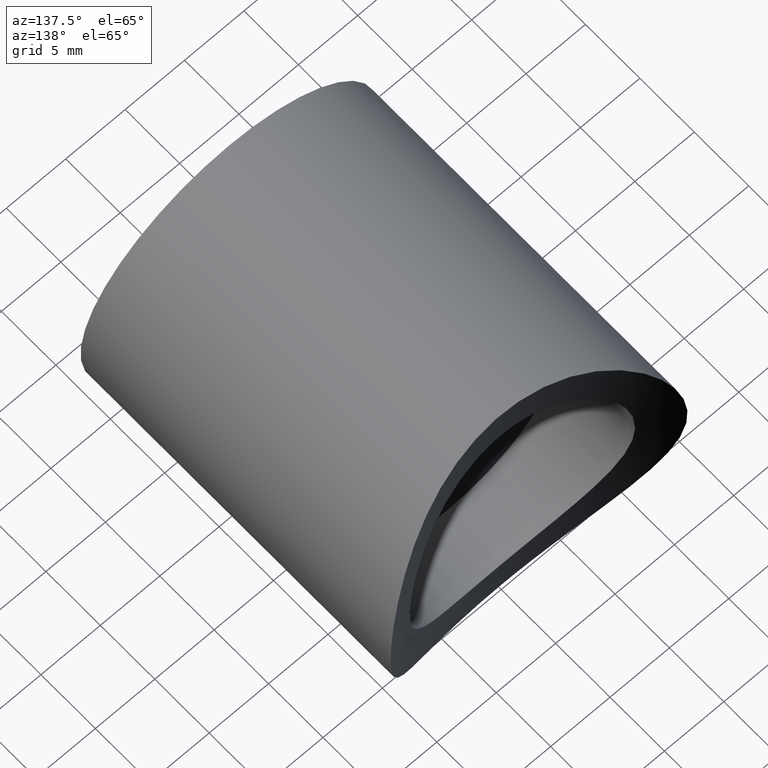
[diagram: clean part render]
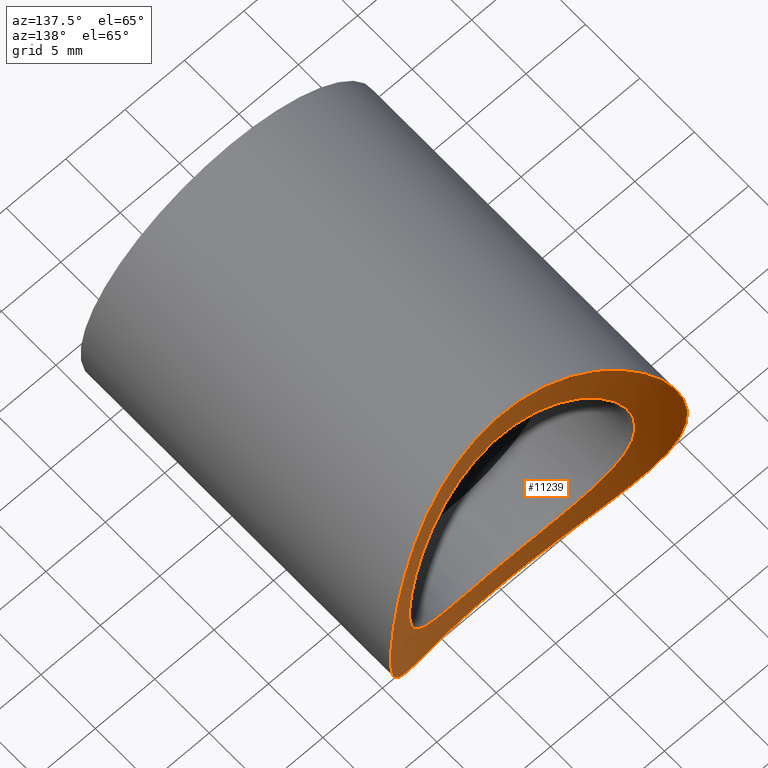
[diagram: same view with one face highlighted and labeled with its STEP entity id]
A machine part, auxiliary view. The second image highlights one B-rep face of the part: STEP entity #11239.
In plain terms, the highlighted cylindrical surface (partial cylindrical patch) has radius 24.15 mm, axis along (-0, -0, 1).
Its self-contained STEP definition (entity closure, byte-faithful):
#242 = CARTESIAN_POINT ( 'NONE',  ( 12.39939560149940334, 28.42610661434584429, 1.636956017459162416 ) ) ;
#252 = CARTESIAN_POINT ( 'NONE',  ( -3.316877259944503109, 25.21483071661616648, -12.08057711187187522 ) ) ;
#296 = CARTESIAN_POINT ( 'NONE',  ( 11.69463221032095035, 28.01968349082272169, 4.433206286189506962 ) ) ;
#311 = CARTESIAN_POINT ( 'NONE',  ( -5.421010862427522170E-16, 24.99999999999999645, -12.50000000000000178 ) ) ;
#326 = CARTESIAN_POINT ( 'NONE',  ( 0.000000000000000000, 49.14999999999999858, -12.50000000000000000 ) ) ;
#349 = CARTESIAN_POINT ( 'NONE',  ( -2.042669042519713596, 25.08308288046928425, 12.33891662597604189 ) ) ;
#396 = CARTESIAN_POINT ( 'NONE',  ( 0.8701867918572698812, 25.00139095811006129, 12.49731265922300594 ) ) ;
#444 = CARTESIAN_POINT ( 'NONE',  ( 12.16623829432023030, 28.28821014725352612, -2.898783021241122970 ) ) ;
#541 = FACE_BOUND ( 'NONE', #9761, .T. ) ;
#616 = CARTESIAN_POINT ( 'NONE',  ( 8.990454928467288553, 26.73562935201542601, -3.085357486730779364 ) ) ;
#668 = CARTESIAN_POINT ( 'NONE',  ( 8.237217831319831873, 26.44533245457878223, 4.772522679604954021 ) ) ;
#724 = CARTESIAN_POINT ( 'NONE',  ( 7.723775209362806038, 26.26772316830312803, 5.539673194081197849 ) ) ;
#772 = CARTESIAN_POINT ( 'NONE',  ( 0.6367274069740926912, 25.00637850114738114, 9.483817578424563521 ) ) ;
#819 = CARTESIAN_POINT ( 'NONE',  ( -8.645799211394617600, 26.60029495687120260, 3.949277084034160001 ) ) ;
#873 = VERTEX_POINT ( 'NONE', #3910 ) ;
#1027 = CARTESIAN_POINT ( 'NONE',  ( -2.477368257026581588, 25.11946122093323552, 9.192778334958580544 ) ) ;
#1335 = CARTESIAN_POINT ( 'NONE',  ( -10.16369364889730242, 27.24147719938138223, -7.287758421890151439 ) ) ;
#1427 = CARTESIAN_POINT ( 'NONE',  ( 12.07568711241505177, 28.23542578517956514, 3.255345404598888326 ) ) ;
#1480 = CARTESIAN_POINT ( 'NONE',  ( 2.880084786186520418, 25.16890301952331654, -12.17068015586779772 ) ) ;
#1530 = CARTESIAN_POINT ( 'NONE',  ( -4.048937038016213741, 25.32909628045069894, 11.85496764630669020 ) ) ;
#1579 = CARTESIAN_POINT ( 'NONE',  ( 5.594287980704880425, 25.64427812082080393, -11.20816533570559237 ) ) ;
#1632 = CARTESIAN_POINT ( 'NONE',  ( 9.923142205795819848, 27.13111103054635720, 7.612074174934306825 ) ) ;
#1748 = CARTESIAN_POINT ( 'NONE',  ( 8.527852376057262873, 26.55434819827350168, -4.231666778120477090 ) ) ;
#1800 = CARTESIAN_POINT ( 'NONE',  ( 2.476898393227373152, 25.12545592991584442, -9.176787205671457670 ) ) ;
#1850 = CARTESIAN_POINT ( 'NONE',  ( 9.011774073292215803, 26.74291890696499863, 3.071009793062427828 ) ) ;
#2057 = CARTESIAN_POINT ( 'NONE',  ( -8.226763975962532172, 26.44389147346072733, -4.760989118344688187 ) ) ;
#2107 = CARTESIAN_POINT ( 'NONE',  ( -7.153422303367721113, 26.07924161334418756, 6.282005769728957745 ) ) ;
#2157 = CARTESIAN_POINT ( 'NONE',  ( -3.072267678048737682, 25.18916197169116700, 9.011029675267774763 ) ) ;
#2211 = CARTESIAN_POINT ( 'NONE',  ( -4.766860932096798287, 25.47348250131881642, 8.223378779994927612 ) ) ;
#2396 = CARTESIAN_POINT ( 'NONE',  ( -12.40093975770249912, 28.42703164710895791, -1.625193573246791034 ) ) ;
#2518 = CARTESIAN_POINT ( 'NONE',  ( -5.595272729540674561, 25.65417096119978524, -11.18531521167290066 ) ) ;
#2612 = CARTESIAN_POINT ( 'NONE',  ( 8.560607551957422956, 26.56613982061724855, -9.117340885081240742 ) ) ;
#2662 = CARTESIAN_POINT ( 'NONE',  ( 5.616393516081356729, 25.64972558784733536, 11.19673421751229903 ) ) ;
#2717 = CARTESIAN_POINT ( 'NONE',  ( -6.290458467577763280, 25.82310979107226956, 10.83203505537226086 ) ) ;
#2766 = CARTESIAN_POINT ( 'NONE',  ( 12.17629244726874660, 28.29408420261459156, 2.856247619983873332 ) ) ;
#2820 = CARTESIAN_POINT ( 'NONE',  ( 12.48103956478300702, 28.47517425164690863, 0.8051631312347458103 ) ) ;
#2942 = CARTESIAN_POINT ( 'NONE',  ( 8.529957691302314515, 26.55510728411172394, 4.228829020159077245 ) ) ;
#2949 = AXIS2_PLACEMENT_3D ( 'NONE', #326, #3772, #8574 ) ;
#2992 = CARTESIAN_POINT ( 'NONE',  ( 9.376693620057872991, 26.89456204277399820, 1.557247264431475431 ) ) ;
#3081 = CARTESIAN_POINT ( 'NONE',  ( -12.50113647660908178, 28.48737459274473949, -0.3784457863119011223 ) ) ;
#3097 = CARTESIAN_POINT ( 'NONE',  ( 9.500381635804105329, 26.94717925683632842, 0.3015378183090482445 ) ) ;
#3147 = CARTESIAN_POINT ( 'NONE',  ( -9.434962940845295520, 26.91889607188140943, 1.273160634128868818 ) ) ;
#3242 = CARTESIAN_POINT ( 'NONE',  ( -3.934444486296401422, 25.32087562434656292, 8.652572895259922348 ) ) ;
#3296 = CARTESIAN_POINT ( 'NONE',  ( -9.187328606542145337, 26.81541917489055393, 2.496488888585715493 ) ) ;
#3343 = CARTESIAN_POINT ( 'NONE',  ( -8.510542519066497391, 26.54872143713437183, 4.232847530208180054 ) ) ;
#3702 = CARTESIAN_POINT ( 'NONE',  ( -0.8415633137906161076, 25.01104361446218149, -12.47870299761530433 ) ) ;
#3772 = DIRECTION ( 'NONE',  ( -0.000000000000000000, -0.000000000000000000, 1.000000000000000000 ) ) ;
#3795 = CARTESIAN_POINT ( 'NONE',  ( 9.905737200678290222, 27.12327709735981074, -7.634650847773372107 ) ) ;
#3845 = CARTESIAN_POINT ( 'NONE',  ( 3.322960808794963583, 25.22639354888726615, 12.05726743121238265 ) ) ;
#3896 = CARTESIAN_POINT ( 'NONE',  ( -8.264077568507033789, 26.44978608018516653, 9.412695405477595756 ) ) ;
#3910 = CARTESIAN_POINT ( 'NONE',  ( 0.000000000000000000, 24.99999999999999289, -9.500000000000000000 ) ) ;
#3922 = CARTESIAN_POINT ( 'NONE',  ( -11.36069409278679743, 27.83828525848094415, 5.229597903835152550 ) ) ;
#3961 = CARTESIAN_POINT ( 'NONE',  ( -12.39229586063315125, 28.42185618982530215, 1.689128689021135443 ) ) ;
#4000 = CARTESIAN_POINT ( 'NONE',  ( 9.412192866964701921, 26.90790369320749775, 8.235475087461983534 ) ) ;
#4071 = CARTESIAN_POINT ( 'NONE',  ( 4.777492450567407900, 25.47141337804063355, -8.234587001808481688 ) ) ;
#4119 = CARTESIAN_POINT ( 'NONE',  ( 1.573465314519182368, 25.04932036444492738, 9.374090728484139490 ) ) ;
#4176 = CARTESIAN_POINT ( 'NONE',  ( 9.251696904950398093, 26.84230876325579018, -2.180429874088624320 ) ) ;
#4281 = CARTESIAN_POINT ( 'NONE',  ( 3.949770568916393110, 25.32343629741845703, 8.645516123807398756 ) ) ;
#4330 = CARTESIAN_POINT ( 'NONE',  ( -4.218238365120579481, 25.36961082937598988, 8.517827586905386994 ) ) ;
#4384 = CARTESIAN_POINT ( 'NONE',  ( -6.277639297956271847, 25.82888153849502544, -7.137010952105956818 ) ) ;
#4537 = CARTESIAN_POINT ( 'NONE',  ( -8.996200247582851972, 26.73793805095572296, -3.068502061978073403 ) ) ;
#4599 = FACE_OUTER_BOUND ( 'NONE', #13403, .T. ) ;
#4624 = CARTESIAN_POINT ( 'NONE',  ( -10.58722758480828752, 27.44295697200132977, 6.657615752389725472 ) ) ;
#4854 = CARTESIAN_POINT ( 'NONE',  ( -1.676951933329635214, 25.05466276626705024, -12.39411511674444810 ) ) ;
#5015 = CARTESIAN_POINT ( 'NONE',  ( 12.06284593198464528, 28.22800179751478566, -3.302785208884865931 ) ) ;
#5040 = CARTESIAN_POINT ( 'NONE',  ( -11.18556598586050654, 27.74549956250869442, 5.594425883101207475 ) ) ;
#5061 = CARTESIAN_POINT ( 'NONE',  ( 2.916893301379968051, 25.17329496480514450, 12.16203323285879279 ) ) ;
#5112 = CARTESIAN_POINT ( 'NONE',  ( 7.317373504727924249, 26.13256476786166260, -10.14252889460935414 ) ) ;
#5148 = CARTESIAN_POINT ( 'NONE',  ( -12.33897836552499427, 28.38991737696543183, -2.042544866178403140 ) ) ;
#5169 = CARTESIAN_POINT ( 'NONE',  ( 4.463086516404187520, 25.41286688508516178, -11.68324080886737804 ) ) ;
#5170 = EDGE_CURVE ( 'NONE', #12404, #12404, #5751, .T. ) ;
#5197 = CARTESIAN_POINT ( 'NONE',  ( -10.81973109692052049, 27.55827660612012764, -6.272818569617440332 ) ) ;
#5212 = CARTESIAN_POINT ( 'NONE',  ( 3.280682860040508686, 25.22050641012258154, -12.06894086756878970 ) ) ;
#5284 = CARTESIAN_POINT ( 'NONE',  ( 0.6343488039815247115, 24.99999999999999645, -9.499999999999998224 ) ) ;
#5393 = CARTESIAN_POINT ( 'NONE',  ( 9.193056664637765607, 26.81778522380194829, 2.475342058951149671 ) ) ;
#5440 = CARTESIAN_POINT ( 'NONE',  ( 9.173829633520957927, 26.81005503092796971, -2.487681751522923257 ) ) ;
#5494 = CARTESIAN_POINT ( 'NONE',  ( 7.544457634476878560, 26.20576920126883635, -5.806659888272251102 ) ) ;
#5544 = CARTESIAN_POINT ( 'NONE',  ( -5.553079317562386485, 25.64565565303479389, -7.714129740837597282 ) ) ;
#5596 = CARTESIAN_POINT ( 'NONE',  ( -7.542979384534642229, 26.20534345693086209, 5.807806941451846505 ) ) ;
#5646 = CARTESIAN_POINT ( 'NONE',  ( -8.891121034785888000, 26.69589652520494027, -3.360649652997358849 ) ) ;
#5704 = CARTESIAN_POINT ( 'NONE',  ( -7.161008188894701476, 26.08167090256071319, -6.272936677098544855 ) ) ;
#5745 = CARTESIAN_POINT ( 'NONE',  ( -12.48178325670625632, 28.47562429088371871, -0.7935034702485466163 ) ) ;
#5751 = B_SPLINE_CURVE_WITH_KNOTS ( 'NONE', 3,
 ( #9743, #8698, #7350, #1480, #5212, #6424, #5169, #1579, #6320, #5112, #13498, #8545, #2612, #10957, #6214, #3795, #14622, #6371, #12137, #12242, #13448, #5015, #444, #11163, #9801, #14520, #2820, #242, #7403, #2766, #1427, #8751, #296, #14674, #7555, #8595, #1632, #4000, #9954, #12342, #9905, #12190, #2662, #11004, #7505, #3845, #5061, #13393, #396, #6268, #14567, #7456, #349, #8644, #1530, #9853, #2717, #11054, #3896, #9069, #8227, #4624, #7228, #5040, #3922, #13835, #10308, #11701, #3961, #13876, #11369, #3081, #5745, #2396, #5148, #8945, #9108, #11859, #13583, #5197, #14755, #1335, #13405, #7417, #8507, #9605, #7469, #13204, #11998, #2518, #7362, #10861, #252, #13250, #4854, #3702, #13301, #311 ),
 .UNSPECIFIED., .T., .F.,
 ( 4, 2, 2, 2, 2, 2, 2, 2, 2, 2, 2, 2, 2, 2, 2, 2, 2, 2, 2, 2, 2, 2, 2, 2, 2, 2, 2, 2, 2, 2, 2, 2, 2, 2, 2, 2, 2, 2, 2, 2, 2, 2, 2, 2, 2, 2, 2, 2, 4 ),
 ( 0.000000000000000000, 0.002486133216992815823, 0.003729199825489223734, 0.004972266433985631645, 0.007458399650978449202, 0.008701466259474861450, 0.009944532867971273699, 0.01118759947646768421, 0.01243066608496409993, 0.01491679930195692269, 0.01615986591045333320, 0.01740293251894974719, 0.01988906573594256821, 0.02113213234443898220, 0.02237519895293539271, 0.02361826556143180669, 0.02486133216992821721, 0.02734746538692104170, 0.02859053199541745569, 0.02983359860391387314, 0.03231973182090669416, 0.03480586503789952213, 0.03604893164639592917, 0.03729199825489233622, 0.03977813147188515724, 0.04102119808038157123, 0.04226426468887797133, 0.04475039790587078542, 0.04723653112286360645, 0.04972266433985642053, 0.05220879755684923462, 0.05345186416534564167, 0.05469493077384204871, 0.05718106399083487668, 0.05842413059933129066, 0.05966719720782771158, 0.06091026381632413250, 0.06215333042482053955, 0.06463946364181336057, 0.06588253025030978149, 0.06712559685880620242, 0.06836866346730260946, 0.06961173007579903038, 0.07209786329279185835, 0.07334092990128826539, 0.07458399650978467244, 0.07707012972677750040, 0.07831319633527390744, 0.07955626294377031449 ),
 .UNSPECIFIED. ) ;
#6214 = CARTESIAN_POINT ( 'NONE',  ( 9.394847521644631883, 26.90057323516754550, -8.255202184159763590 ) ) ;
#6268 = CARTESIAN_POINT ( 'NONE',  ( -0.3758445865019326981, 24.99935297399902723, 12.50125005891698571 ) ) ;
#6320 = CARTESIAN_POINT ( 'NONE',  ( 6.306957372526916572, 25.82748068079614256, -10.82273894371697587 ) ) ;
#6371 = CARTESIAN_POINT ( 'NONE',  ( 10.82438516625332880, 27.55592695536653380, -6.303536818163577138 ) ) ;
#6424 = CARTESIAN_POINT ( 'NONE',  ( 4.073928212782698566, 25.34271850014701144, -11.82477579534296375 ) ) ;
#6447 = EDGE_CURVE ( 'NONE', #873, #873, #6945, .T. ) ;
#6500 = CARTESIAN_POINT ( 'NONE',  ( 8.236572966326859202, 26.44503504265567528, -4.774411568650106297 ) ) ;
#6594 = CARTESIAN_POINT ( 'NONE',  ( 5.548325332916299146, 25.64451264848279521, -7.717629189169089798 ) ) ;
#6647 = CARTESIAN_POINT ( 'NONE',  ( 7.152746981666464166, 26.07914938774874969, -6.282022759720637950 ) ) ;
#6702 = CARTESIAN_POINT ( 'NONE',  ( 3.093813615829780428, 25.19203433111395185, 9.003380680992764340 ) ) ;
#6749 = CARTESIAN_POINT ( 'NONE',  ( -5.799092914521392750, 25.70073719207622176, 7.549815552955287501 ) ) ;
#6802 = CARTESIAN_POINT ( 'NONE',  ( -7.550169701924356325, 26.20768821133579962, -5.798833281063221712 ) ) ;
#6905 = CARTESIAN_POINT ( 'NONE',  ( -6.508174638112107502, 25.89236685973550323, -6.927380896768321250 ) ) ;
#6945 = B_SPLINE_CURVE_WITH_KNOTS ( 'NONE', 3,
 ( #9032, #5284, #14853, #8932, #1800, #11334, #12473, #9091, #4071, #6594, #10134, #7725, #10246, #6647, #5494, #6500, #1748, #13618, #616, #5440, #4176, #7674, #10079, #3097, #13778, #10188, #2992, #5393, #1850, #2942, #668, #724, #11429, #14950, #13721, #11283, #7829, #12570, #13825, #12519, #4281, #6702, #15002, #4119, #14895, #772, #7779, #15278, #8142, #11537, #1027, #2157, #3242, #4330, #2211, #7932, #6749, #12727, #2107, #5596, #10448, #9355, #3343, #819, #8089, #3296, #3147, #9303, #8040, #13930, #11635, #12840, #4537, #5646, #10345, #11482, #2057, #14080, #6802, #5704, #6905, #4384, #12675, #5544, #13980, #10401, #15109, #10500, #14028, #12892, #13877, #9139, #15057, #7989, #15223 ),
 .UNSPECIFIED., .T., .F.,
 ( 4, 2, 2, 2, 2, 2, 2, 2, 2, 2, 2, 2, 2, 2, 2, 2, 2, 2, 2, 2, 2, 2, 2, 1, 2, 2, 2, 2, 2, 2, 2, 2, 2, 2, 2, 2, 2, 2, 2, 2, 2, 2, 2, 2, 2, 2, 2, 4 ),
 ( 0.000000000000000000, 0.001874720630790744583, 0.002812080946186115791, 0.003749441261581487866, 0.005624161892372231582, 0.006561522207767602789, 0.007498882523162973997, 0.009373603153953713810, 0.01124832378474445449, 0.01218568410013982396, 0.01312304441553519517, 0.01499776504632593759, 0.01593512536172130359, 0.01687248567711667827, 0.01874720630790742068, 0.02062192693869816310, 0.02155928725409353083, 0.02249664756948889857, 0.02437136820027964099, 0.02530872851567501219, 0.02624608883107038340, 0.02812080946186112582, 0.02905816977725649702, 0.02999553009265186476, 0.03093289040804723250, 0.03187025072344260024, 0.03374497135423334265, 0.03468233166962871733, 0.03561969198502408507, 0.03749441261581483442, 0.03936913324660557684, 0.04030649356200094457, 0.04124385387739632619, 0.04311857450818706167, 0.04499329513897779714, 0.04686801576976853956, 0.04780537608516390730, 0.04874273640055928197, 0.04968009671595465665, 0.05061745703135002439, 0.05249217766214075986, 0.05342953797753613454, 0.05436689829293150922, 0.05624161892372224469, 0.05717897923911761937, 0.05811633955451299405, 0.05905369986990836872, 0.05999106018530373646 ),
 .UNSPECIFIED. ) ;
#7228 = CARTESIAN_POINT ( 'NONE',  ( -10.79939258952037662, 27.54808700369298791, 6.307741837057440293 ) ) ;
#7350 = CARTESIAN_POINT ( 'NONE',  ( 1.666427008392849851, 25.04383638825330038, -12.41589289394556062 ) ) ;
#7362 = CARTESIAN_POINT ( 'NONE',  ( -5.226925829154962067, 25.56930795605689966, -11.36202694756624076 ) ) ;
#7403 = CARTESIAN_POINT ( 'NONE',  ( 12.33814508041328928, 28.38942444237835261, 2.047052564725865498 ) ) ;
#7417 = CARTESIAN_POINT ( 'NONE',  ( -9.411987761562494725, 26.90781012069027156, -8.235748521031602820 ) ) ;
#7456 = CARTESIAN_POINT ( 'NONE',  ( -1.630651670391572772, 25.05147306847736033, 12.40031129654895814 ) ) ;
#7469 = CARTESIAN_POINT ( 'NONE',  ( -7.670003217709699506, 26.23967696440638875, -9.903237437807751675 ) ) ;
#7505 = CARTESIAN_POINT ( 'NONE',  ( 4.109752741455175773, 25.34892971800192285, 11.81226899662650709 ) ) ;
#7555 = CARTESIAN_POINT ( 'NONE',  ( 10.83888041841364469, 27.56323408702176891, 6.278582914400741899 ) ) ;
#7674 = CARTESIAN_POINT ( 'NONE',  ( 9.437043816654819395, 26.91978093354746093, -1.258921852254839546 ) ) ;
#7725 = CARTESIAN_POINT ( 'NONE',  ( 6.275586754272981516, 25.82833350539628370, -7.138791081410557737 ) ) ;
#7779 = CARTESIAN_POINT ( 'NONE',  ( 0.01253060823599894645, 24.99394442722089593, 9.515361503100102425 ) ) ;
#7829 = CARTESIAN_POINT ( 'NONE',  ( 5.813957471726459048, 25.70439223781708904, 7.538538968242263216 ) ) ;
#7932 = CARTESIAN_POINT ( 'NONE',  ( -5.031704170482039551, 25.52854408895725413, 8.063916636441506469 ) ) ;
#7989 = CARTESIAN_POINT ( 'NONE',  ( -0.3171744019907618006, 24.99999999999999289, -9.500000000000003553 ) ) ;
#8040 = CARTESIAN_POINT ( 'NONE',  ( -9.500662680517622860, 26.94729950751320757, -0.6160530832159534231 ) ) ;
#8089 = CARTESIAN_POINT ( 'NONE',  ( -9.005327352623410775, 26.74034258594000235, 3.088788311459563118 ) ) ;
#8142 = CARTESIAN_POINT ( 'NONE',  ( -1.238753796529355578, 25.02975783685547384, 9.424137995978076887 ) ) ;
#8227 = CARTESIAN_POINT ( 'NONE',  ( -9.909193422454752209, 27.12091001598058426, 7.662299098335449088 ) ) ;
#8507 = CARTESIAN_POINT ( 'NONE',  ( -9.139284782924375961, 26.79403560448592359, -8.537292556855806680 ) ) ;
#8545 = CARTESIAN_POINT ( 'NONE',  ( 8.264370655871715599, 26.45571132997648434, -9.386802674788903289 ) ) ;
#8574 = DIRECTION ( 'NONE',  ( 1.000000000000000000, 0.000000000000000000, 0.000000000000000000 ) ) ;
#8595 = CARTESIAN_POINT ( 'NONE',  ( 10.16551749499001112, 27.24231694392010894, 7.285275361540633376 ) ) ;
#8644 = CARTESIAN_POINT ( 'NONE',  ( -3.260479979501059500, 25.20719823985107055, 12.09564845651103582 ) ) ;
#8698 = CARTESIAN_POINT ( 'NONE',  ( 0.8416139926660903825, 24.99999999999999289, -12.50000000000000355 ) ) ;
#8751 = CARTESIAN_POINT ( 'NONE',  ( 11.83531592272857580, 28.09846963203419179, 4.042869024516793530 ) ) ;
#8899 = CYLINDRICAL_SURFACE ( 'NONE', #2949, 24.15000000000000568 ) ;
#8932 = CARTESIAN_POINT ( 'NONE',  ( 2.174000736269224632, 25.09609725218492571, -9.253158087516538899 ) ) ;
#8945 = CARTESIAN_POINT ( 'NONE',  ( -12.09488317661415735, 28.24612544468088160, -3.263940484297838562 ) ) ;
#9032 = CARTESIAN_POINT ( 'NONE',  ( 3.523657060577889411E-16, 24.99999999999999645, -9.500000000000001776 ) ) ;
#9069 = CARTESIAN_POINT ( 'NONE',  ( -9.399704287991015761, 26.89600599078943333, 8.278850895681333810 ) ) ;
#9091 = CARTESIAN_POINT ( 'NONE',  ( 4.234205104439968004, 25.36699973984651635, -8.526914707248510084 ) ) ;
#9108 = CARTESIAN_POINT ( 'NONE',  ( -11.85457163419844306, 28.10669073264531903, -4.048891219634843885 ) ) ;
#9139 = CARTESIAN_POINT ( 'NONE',  ( -1.262451520650295089, 25.03097868495188649, -9.421015230271059693 ) ) ;
#9303 = CARTESIAN_POINT ( 'NONE',  ( -9.499326505657210262, 26.94672779820567854, 0.6363243742295865424 ) ) ;
#9355 = CARTESIAN_POINT ( 'NONE',  ( -8.216106106290528288, 26.44003022689674154, 4.779323449297374182 ) ) ;
#9605 = CARTESIAN_POINT ( 'NONE',  ( -8.287351939170422455, 26.45826186860351825, -9.392409702269299387 ) ) ;
#9743 = CARTESIAN_POINT ( 'NONE',  ( -5.421010862427522170E-16, 24.99999999999999645, -12.50000000000000178 ) ) ;
#9761 = EDGE_LOOP ( 'NONE', ( #12309 ) ) ;
#9801 = CARTESIAN_POINT ( 'NONE',  ( 12.49774924526884057, 28.48532554201312195, -0.8654298213824739294 ) ) ;
#9853 = CARTESIAN_POINT ( 'NONE',  ( -5.575696691962559903, 25.63955654282344199, 11.21809945721803814 ) ) ;
#9871 = CARTESIAN_POINT ( 'NONE',  ( 0.000000000000000000, 24.99999999999999289, -12.50000000000000000 ) ) ;
#9905 = CARTESIAN_POINT ( 'NONE',  ( 7.679687139352855851, 26.24273228511961520, 9.896326891067070974 ) ) ;
#9954 = CARTESIAN_POINT ( 'NONE',  ( 9.143358402556364339, 26.79572744065201562, 8.532821530365845675 ) ) ;
#10079 = CARTESIAN_POINT ( 'NONE',  ( 9.499214769619738874, 26.94667998977249113, -0.6384542957926184759 ) ) ;
#10134 = CARTESIAN_POINT ( 'NONE',  ( 5.798810078399077028, 25.70523685616370813, -7.531210320333035391 ) ) ;
#10188 = CARTESIAN_POINT ( 'NONE',  ( 9.423099453564322658, 26.91424425455463521, 1.247042695232502885 ) ) ;
#10246 = CARTESIAN_POINT ( 'NONE',  ( 6.502903001252344772, 25.89090259929586679, -6.932254495519480031 ) ) ;
#10308 = CARTESIAN_POINT ( 'NONE',  ( -12.07716066025250257, 28.23582747360669387, 3.330140473100303478 ) ) ;
#10345 = CARTESIAN_POINT ( 'NONE',  ( -8.653247290357748867, 26.60315748394174307, -3.932850197670830106 ) ) ;
#10401 = CARTESIAN_POINT ( 'NONE',  ( -4.244949404084841227, 25.36881882954117629, -8.521892304879829183 ) ) ;
#10448 = CARTESIAN_POINT ( 'NONE',  ( -8.056722323660354235, 26.38281855678741294, 5.043165203084821968 ) ) ;
#10500 = CARTESIAN_POINT ( 'NONE',  ( -3.082449562587934899, 25.19564369067418141, -8.991431942035326585 ) ) ;
#10861 = CARTESIAN_POINT ( 'NONE',  ( -4.099037510848100752, 25.33803756378459227, -11.83695617156265634 ) ) ;
#10957 = CARTESIAN_POINT ( 'NONE',  ( 9.125846458580165077, 26.78856738321623610, -8.551539796307114472 ) ) ;
#11004 = CARTESIAN_POINT ( 'NONE',  ( 4.493358900822066460, 25.41862216006217068, 11.67154270457320919 ) ) ;
#11054 = CARTESIAN_POINT ( 'NONE',  ( -7.632636067880914865, 26.22716114424365585, 9.932055065716143716 ) ) ;
#11163 = CARTESIAN_POINT ( 'NONE',  ( 12.41328738822396183, 28.43359788489520312, -1.685670540479231594 ) ) ;
#11239 = ADVANCED_FACE ( 'NONE', ( #541, #4599 ), #8899, .F. ) ;
#11283 = CARTESIAN_POINT ( 'NONE',  ( 6.286814923218981832, 25.82826828645841388, 7.148713453203217938 ) ) ;
#11334 = CARTESIAN_POINT ( 'NONE',  ( 3.077021658739412580, 25.19492368750545452, -8.993352366064399916 ) ) ;
#11369 = CARTESIAN_POINT ( 'NONE',  ( -12.49876076068150610, 28.48593744263716232, 0.4501265013655141867 ) ) ;
#11429 = CARTESIAN_POINT ( 'NONE',  ( 7.540132609630785687, 26.20634207888515377, 5.787255511451570023 ) ) ;
#11482 = CARTESIAN_POINT ( 'NONE',  ( -8.520452612577113172, 26.55245815996789460, -4.212902820861092579 ) ) ;
#11537 = CARTESIAN_POINT ( 'NONE',  ( -1.553460638403711513, 25.04803593235149606, 9.377387258404233705 ) ) ;
#11635 = CARTESIAN_POINT ( 'NONE',  ( -9.255283127220215178, 26.84379706405244548, -2.165420669590643943 ) ) ;
#11701 = CARTESIAN_POINT ( 'NONE',  ( -12.32893162694468181, 28.38393572538485543, 2.102821018098295358 ) ) ;
#11859 = CARTESIAN_POINT ( 'NONE',  ( -11.38086847299332405, 27.84904600285714693, -5.185983993912954837 ) ) ;
#11998 = CARTESIAN_POINT ( 'NONE',  ( -6.316747293375142291, 25.83777653740197167, -10.79430669075418869 ) ) ;
#12137 = CARTESIAN_POINT ( 'NONE',  ( 11.20659804588976449, 27.75461045228879087, -5.596363829670498724 ) ) ;
#12190 = CARTESIAN_POINT ( 'NONE',  ( 6.328959426137783062, 25.83337971956816048, 10.81014121441068099 ) ) ;
#12242 = CARTESIAN_POINT ( 'NONE',  ( 11.67831068887509893, 28.01066302200520042, -4.475638660923357826 ) ) ;
#12309 = ORIENTED_EDGE ( 'NONE', *, *, #6447, .T. ) ;
#12342 = CARTESIAN_POINT ( 'NONE',  ( 8.296859981971220321, 26.46183937423682409, 9.383618653070685767 ) ) ;
#12404 = VERTEX_POINT ( 'NONE', #9871 ) ;
#12473 = CARTESIAN_POINT ( 'NONE',  ( 3.373369171928280341, 25.23500148463071469, -8.886341893753190391 ) ) ;
#12519 = CARTESIAN_POINT ( 'NONE',  ( 4.229353381389522326, 25.37159070499658853, 8.512301521622472222 ) ) ;
#12570 = CARTESIAN_POINT ( 'NONE',  ( 5.044969069780084858, 25.53136713757002596, 8.055662908764865904 ) ) ;
#12675 = CARTESIAN_POINT ( 'NONE',  ( -5.800068759184897615, 25.70554385703263733, -7.530264462451011553 ) ) ;
#12727 = CARTESIAN_POINT ( 'NONE',  ( -6.275471604676970294, 25.82512488083458635, 7.159155207153967027 ) ) ;
#12840 = CARTESIAN_POINT ( 'NONE',  ( -9.178132630791342450, 26.81182592256003971, -2.471680644941142813 ) ) ;
#12892 = CARTESIAN_POINT ( 'NONE',  ( -2.183789432479962045, 25.09698196075515852, -9.250860053672596450 ) ) ;
#13204 = CARTESIAN_POINT ( 'NONE',  ( -6.665751520387525275, 25.93550895653356392, -10.58210857748918166 ) ) ;
#13250 = CARTESIAN_POINT ( 'NONE',  ( -2.094311208364735055, 25.08749313957578408, -12.33032299215526173 ) ) ;
#13301 = CARTESIAN_POINT ( 'NONE',  ( -0.4208069963330459129, 24.99999999999999289, -12.50000000000000000 ) ) ;
#13328 = ORIENTED_EDGE ( 'NONE', *, *, #5170, .F. ) ;
#13393 = CARTESIAN_POINT ( 'NONE',  ( 1.693364542386430305, 25.04548548441427513, 12.41272702035197284 ) ) ;
#13403 = EDGE_LOOP ( 'NONE', ( #13328 ) ) ;
#13405 = CARTESIAN_POINT ( 'NONE',  ( -9.923924471011336124, 27.13145673881371422, -7.611096531981374369 ) ) ;
#13448 = CARTESIAN_POINT ( 'NONE',  ( 11.81847010116292296, 28.08899277737386058, -4.091992984200397920 ) ) ;
#13498 = CARTESIAN_POINT ( 'NONE',  ( 7.643601615584862508, 26.23917472201797096, -9.898850495652816051 ) ) ;
#13583 = CARTESIAN_POINT ( 'NONE',  ( -11.20397708090773392, 27.75514085818785404, -5.557493264728316618 ) ) ;
#13618 = CARTESIAN_POINT ( 'NONE',  ( 8.884871832431228356, 26.69342269747138019, -3.377035680665611661 ) ) ;
#13721 = CARTESIAN_POINT ( 'NONE',  ( 6.938676291945659713, 26.01715648012772775, 6.496099429218706867 ) ) ;
#13778 = CARTESIAN_POINT ( 'NONE',  ( 9.485152732290417887, 26.94064353638326281, 0.6178967879999761603 ) ) ;
#13825 = CARTESIAN_POINT ( 'NONE',  ( 4.776994683298578792, 25.47553062007274249, 8.217483131435336929 ) ) ;
#13835 = CARTESIAN_POINT ( 'NONE',  ( -11.83278988928865516, 28.09445903304802528, 4.109907718995604142 ) ) ;
#13876 = CARTESIAN_POINT ( 'NONE',  ( -12.47702995727797948, 28.47275003880019284, 0.8636410543319869015 ) ) ;
#13877 = CARTESIAN_POINT ( 'NONE',  ( -1.572090179147042521, 25.04927085023611610, -9.374213592972790110 ) ) ;
#13930 = CARTESIAN_POINT ( 'NONE',  ( -9.440023145085602252, 26.92104852317643449, -1.238229698173419990 ) ) ;
#13980 = CARTESIAN_POINT ( 'NONE',  ( -4.787628771710840780, 25.47354158460969131, -8.228399662555506922 ) ) ;
#14028 = CARTESIAN_POINT ( 'NONE',  ( -2.485849473620660000, 25.12640256134529793, -9.174306299042536139 ) ) ;
#14080 = CARTESIAN_POINT ( 'NONE',  ( -8.065665250542709330, 26.38598009467085248, -5.028958794178337577 ) ) ;
#14520 = CARTESIAN_POINT ( 'NONE',  ( 12.50105946675680713, 28.48732800745124294, 0.3829992845280626446 ) ) ;
#14567 = CARTESIAN_POINT ( 'NONE',  ( -0.7937935283653675400, 25.00941349151189641, 12.48185230467801432 ) ) ;
#14622 = CARTESIAN_POINT ( 'NONE',  ( 10.14872829841706015, 27.23452566915328177, -7.308644647692615237 ) ) ;
#14674 = CARTESIAN_POINT ( 'NONE',  ( 11.22171516179564676, 27.76251763114064985, 5.567231885764334365 ) ) ;
#14755 = CARTESIAN_POINT ( 'NONE',  ( -10.61159664689884607, 27.45488404047154773, -6.618618285412098956 ) ) ;
#14853 = CARTESIAN_POINT ( 'NONE',  ( 1.256893714816299523, 25.02493451614621378, -9.437111494792395305 ) ) ;
#14895 = CARTESIAN_POINT ( 'NONE',  ( 1.260343601547150305, 25.03089121637467684, 9.421238629142056453 ) ) ;
#14950 = CARTESIAN_POINT ( 'NONE',  ( 7.147168841551585494, 26.08090777420342121, 6.266091578966777043 ) ) ;
#15002 = CARTESIAN_POINT ( 'NONE',  ( 2.500404097984879392, 25.12179392227971775, 9.186700151532582126 ) ) ;
#15057 = CARTESIAN_POINT ( 'NONE',  ( -0.6353278872126878474, 25.00631901483396646, -9.483969120928298580 ) ) ;
#15109 = CARTESIAN_POINT ( 'NONE',  ( -3.378324793188789421, 25.23567709680905224, -8.884536148079376972 ) ) ;
#15223 = CARTESIAN_POINT ( 'NONE',  ( 3.523657060577889411E-16, 24.99999999999999645, -9.500000000000001776 ) ) ;
#15278 = CARTESIAN_POINT ( 'NONE',  ( -0.6128182607090451040, 25.00574505691896832, 9.485427861461765531 ) ) ;